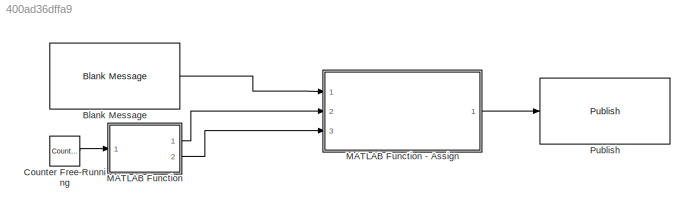
MODEL slx_400ad36dffa9
KIND model
CONFIG AbsTol = auto
CONFIG EnableMultiTasking = off
CONFIG FixedStep = auto
CONFIG MaxStep = auto
CONFIG MinStep = auto
CONFIG RelTol = 1e-3
CONFIG SampleTimeConstraint = Unconstrained
CONFIG Solver = FixedStepAuto
CONFIG SolverName = FixedStepAuto
CONFIG StartTime = 0.0
CONFIG StopTime = Inf
WORKSPACE source: MAT-file member
WORKSPACE SL_ROS_VariableLengthArrays_MaxSizes: struct (value not decoded)
BLOCK [Reference] Blank Message  REF=robotlib/Blank Message
  Ports = [0, 1]
  SourceBlock = robotlib/Blank Message
  SourceLibraryInfo = This block requires Robotics System Toolbox
  SourceProductBaseCode = RO
  SourceProductName = Robotics System Toolbox
  SourceType = ROS Blank Message
BLOCK [Reference] Counter Free-Running  REF=simulink/Sources/Counter
Free-Running
  Ports = [0, 1]
  SourceBlock = simulink/Sources/Counter\nFree-Running
  SourceProductBaseCode = SL
  SourceProductName = Simulink
  SourceType = Counter Free-Running
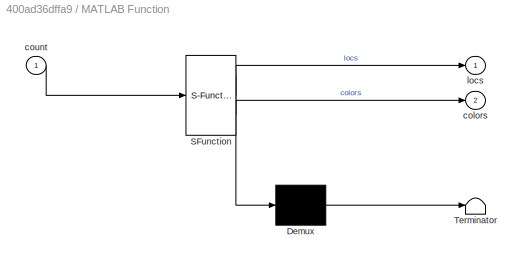
BLOCK [SubSystem] MATLAB Function
  ErrorFcn = Stateflow.Translate.translate
  PermitHierarchicalResolution = ExplicitOnly
  Ports = [1, 2]
  RequestExecContextInheritance = off
  SFBlockType = MATLAB Function
  TreatAsAtomicUnit = on
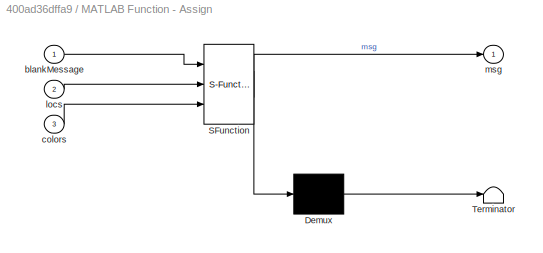
BLOCK [SubSystem] MATLAB Function - Assign
  ErrorFcn = Stateflow.Translate.translate
  PermitHierarchicalResolution = ExplicitOnly
  Ports = [3, 1]
  RequestExecContextInheritance = off
  SFBlockType = MATLAB Function
  TreatAsAtomicUnit = on
BLOCK [Demux] MATLAB Function - Assign/ Demux 
  Outputs = 1
  Ports = [1, 1]
BLOCK [S-Function] MATLAB Function - Assign/ SFunction 
  EnableBusSupport = on
  FunctionName = sf_sfun
  PortCounts = [3 2]
  Ports = [3, 2]
  SFcnIsStateOwnerBlock = off
  SFunctionDeploymentMode = off
  Tag = Stateflow S-Function write_point_cloud 5
BLOCK [Terminator] MATLAB Function - Assign/ Terminator 
BLOCK [Inport] MATLAB Function - Assign/blankMessage
  IconDisplay = Port number
BLOCK [Inport] MATLAB Function - Assign/colors
  IconDisplay = Port number
  Port = 3
BLOCK [Inport] MATLAB Function - Assign/locs
  IconDisplay = Port number
  Port = 2
BLOCK [Outport] MATLAB Function - Assign/msg
  IconDisplay = Port number
BLOCK [Demux] MATLAB Function/ Demux 
  Outputs = 1
  Ports = [1, 1]
BLOCK [S-Function] MATLAB Function/ SFunction 
  EnableBusSupport = on
  FunctionName = sf_sfun
  PortCounts = [1 3]
  Ports = [1, 3]
  SFcnIsStateOwnerBlock = off
  SFunctionDeploymentMode = off
  Tag = Stateflow S-Function write_point_cloud 1
BLOCK [Terminator] MATLAB Function/ Terminator 
BLOCK [Outport] MATLAB Function/colors
  IconDisplay = Port number
  Port = 2
BLOCK [Inport] MATLAB Function/count
  IconDisplay = Port number
BLOCK [Outport] MATLAB Function/locs
  IconDisplay = Port number
BLOCK [Reference] Publish  REF=robotlib/Publish
  Ports = [1]
  SourceBlock = robotlib/Publish
  SourceLibraryInfo = This block requires Robotics System Toolbox
  SourceProductBaseCode = RO
  SourceProductName = Robotics System Toolbox
  SourceType = ROS Publish
LINE Blank Message:1 -> MATLAB Function - Assign:1
LINE Counter Free-Running:1 -> MATLAB Function:1
LINE MATLAB Function - Assign:1 -> Publish:1
LINE MATLAB Function:1 -> MATLAB Function - Assign:2
LINE MATLAB Function:2 -> MATLAB Function - Assign:3
CHART MATLAB Function states=1 transitions=1
  STATE_LABEL 'eML_blk_kernel()'
  STATE_LABEL 'SCRIPT:\nfunction [locs,colors] = fcn(count)\ncount = double(count);\ncenter = [160 120]/2;\n[X,Y] = meshgrid(1:160,1:120);\nZ = 10*sin((X-count-center(1))/10) + 10*cos((Y--center(2))/20) + 20;\nlocs = cat(3,X,Y,Z);\ncolors = im2uint8(hsv2rgb(cat(3,Z/40,ones(size(Z,1),size(Z,2),2))));'
CHART MATLAB Function - Assign states=1 transitions=1
  STATE_LABEL 'eML_blk_kernel()'
  STATE_LABEL 'SCRIPT:\nfunction msg = assignNestedArrayMessages(blankMessage,locs,colors)\n%#codegen\n\n% To set datatype of MSG output:\n%  1. Create buses for this model: robotics.ros.createSimulinkBus(gcs)\n%  1. Click "Edit Data" in  Toolstrip to open "Ports and Data Manager"\n%  2. Select MSG and set datatype to "Bus: SL_Bus_<modelname>_<messageType>"\n% See: \n% http://www.mathworks.com/help/simulink/ug/create-str...<+1727ch>'
